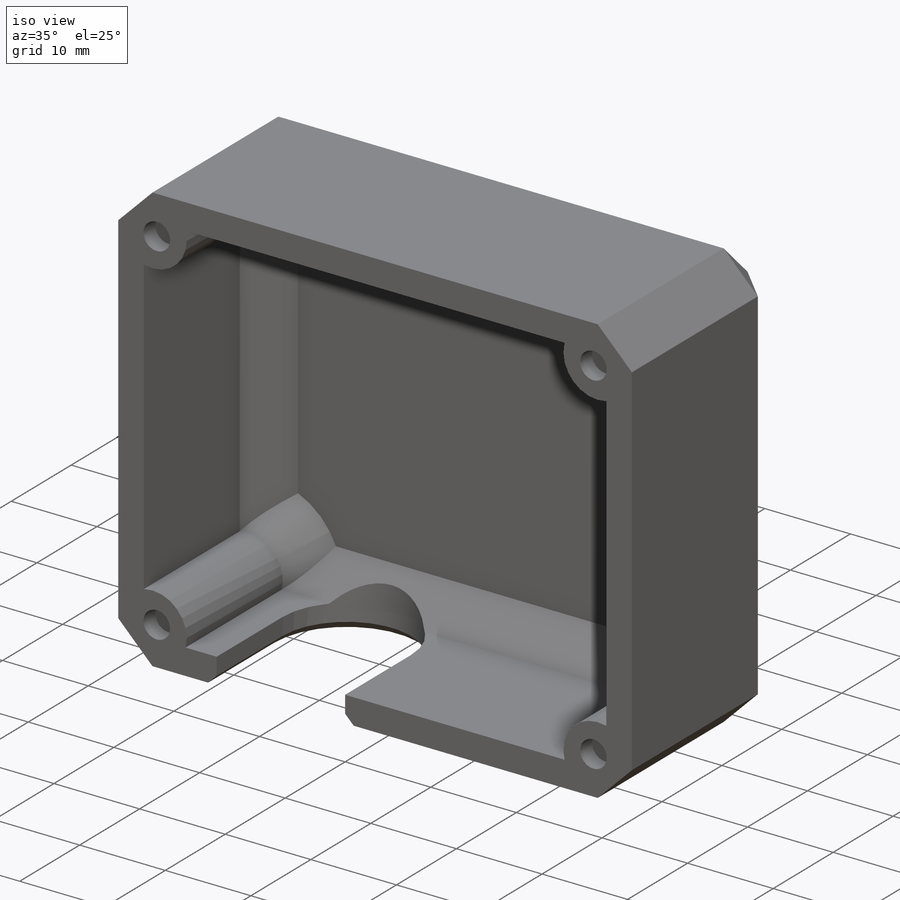
[diagram: iso view]
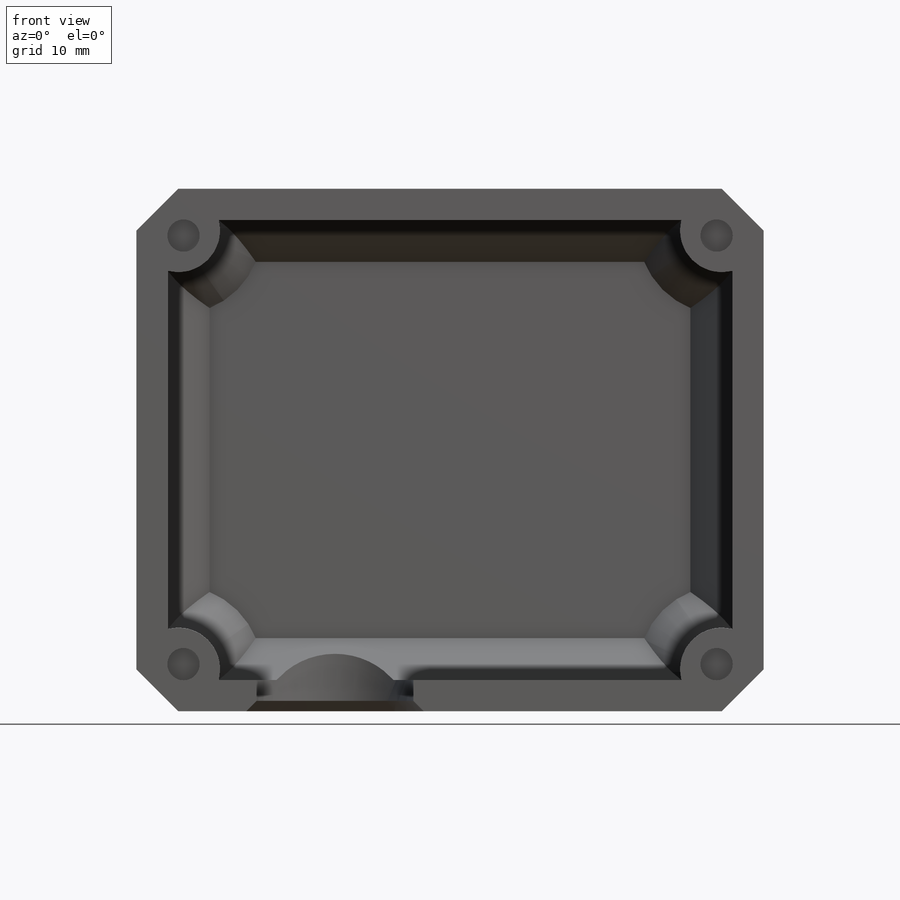
[diagram: front view]
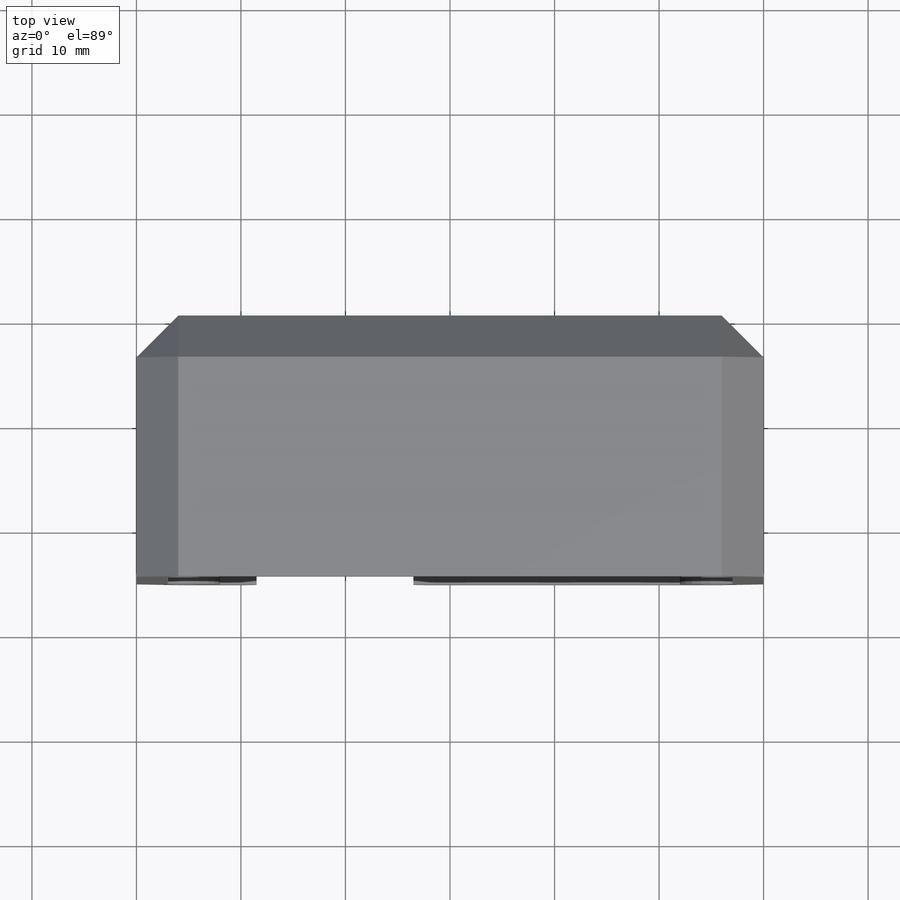
[diagram: top view]
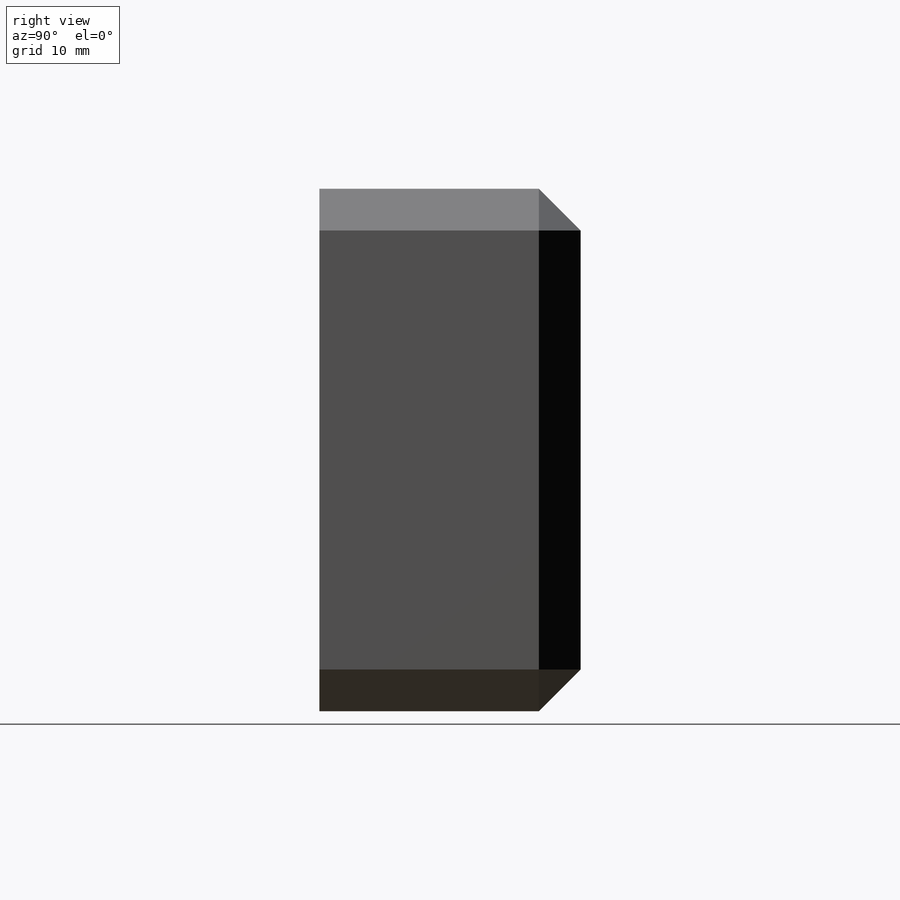
[diagram: right view]
SOLIDWORKS PART (.sldprt)
format: sldprt  version: not decoded by parser v0  size: 407,552 bytes
history: native  units: mm
features: sketch x8, chamfer x5, extrude x4, cut_extrude x4, material x1, plane x1 (+13 scaffold rows collapsed)
feature tree (36):
  scaffold x13  (default folders/planes/origin — collapsed)
  material  "Material <not specified>"
  sketch  "Sketch1"  dims[D1=60.0mm]
  extrude  "Boss-Extrude1"  Depth=5mm
  sketch  "Sketch2"  dims[c1.D2=8.0mm c1.D3=8.0mm c1.D4=8.0mm c1.D5=8.0mm c2.D2=8.0mm c2.D3=8.0mm c2.D4=4.0mm c2.D5=4.0mm c2.D6=4.0mm c2.D7=4.0mm c2.D8=~9.314297mm c2.D1=3.0mm]
  extrude  "Boss-Extrude2"  Depth=20mm
  chamfer  "Chamfer1"  Distance=4mm Angle=45deg
  chamfer  "Chamfer2"  Distance=4mm Angle=45deg
  sketch  "Sketch3"  dims[D1=15.0mm D2=15.0mm D3=10.0mm D4=15.0mm]
  cut_extrude  "Cut-Extrude1"  [1 undecoded]
  sketch  "Sketch5"  dims[c1.D1=3.1mm c1.D2=3.1mm c1.D3=3.0mm c1.D4=3.0mm c2.D3=4.5mm c2.D4=4.5mm c2.D5=4.5mm c2.D6=4.5mm]
  cut_extrude  "Cut-Extrude2"  Depth=2mm
  chamfer  "Chamfer3"  Distance=1mm Angle=45deg
  sketch  "Sketch6"  dims[D1=12.0mm D2=10.0mm D3=4.0mm]
  extrude  "Boss-Extrude3"  Depth=4mm
  sketch  "Sketch7"  dims[D1=0.0mm]
  cut_extrude  "Cut-Extrude3"  [1 undecoded]
  plane  "Plane1"  Offset=2mm
  sketch  "Sketch10"  dims[D1=0.0mm]
  cut_extrude  "Cut-Extrude5"  [1 undecoded]
  sketch  "Sketch11"  dims[D1=10.0mm D2=1.0mm D3=1.0mm D4=11.0mm]
  extrude  "Boss-Extrude5"  Depth=3mm
  chamfer  "Chamfer6"  Distance=1mm Angle=45deg
  chamfer  "Chamfer7"  Distance=3mm Angle=45deg
decode coverage: 18 of 21 modeling features carry decoded parameters
note: ~ marks probable driven/reference dimensions
note: 3 parameter values undecoded
summary: no parameter record found for 3 features
note: suppression state not decoded; provenance and decode notes live in map.json
